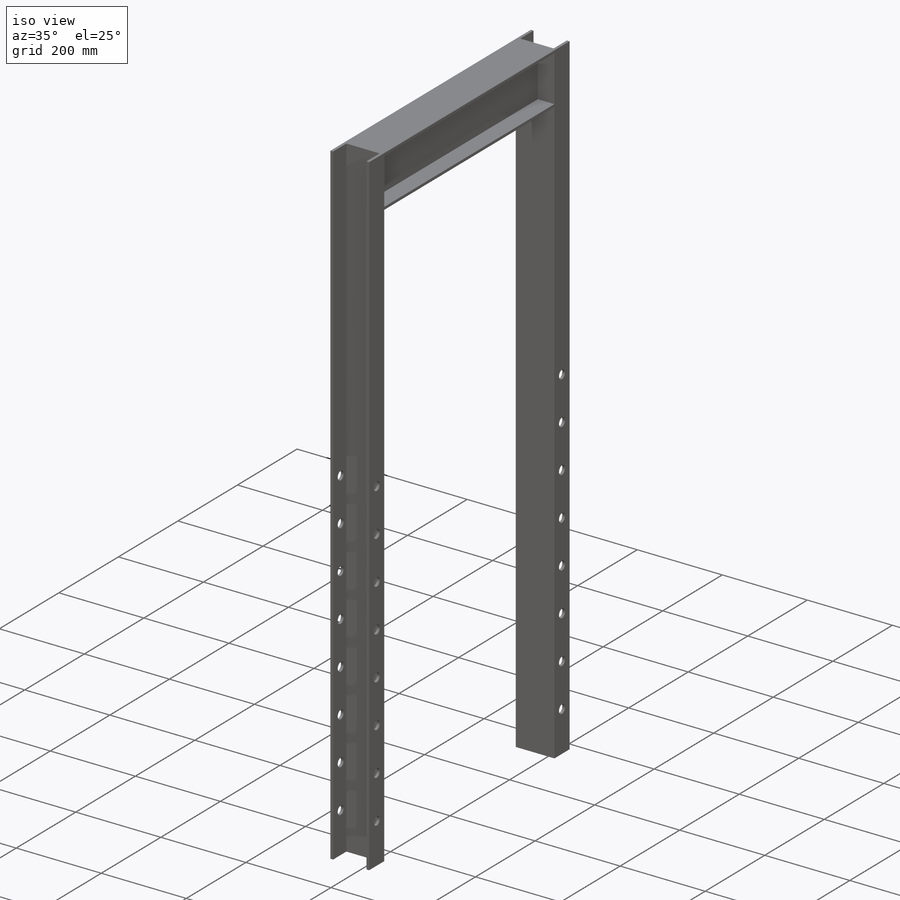
[diagram: iso view]
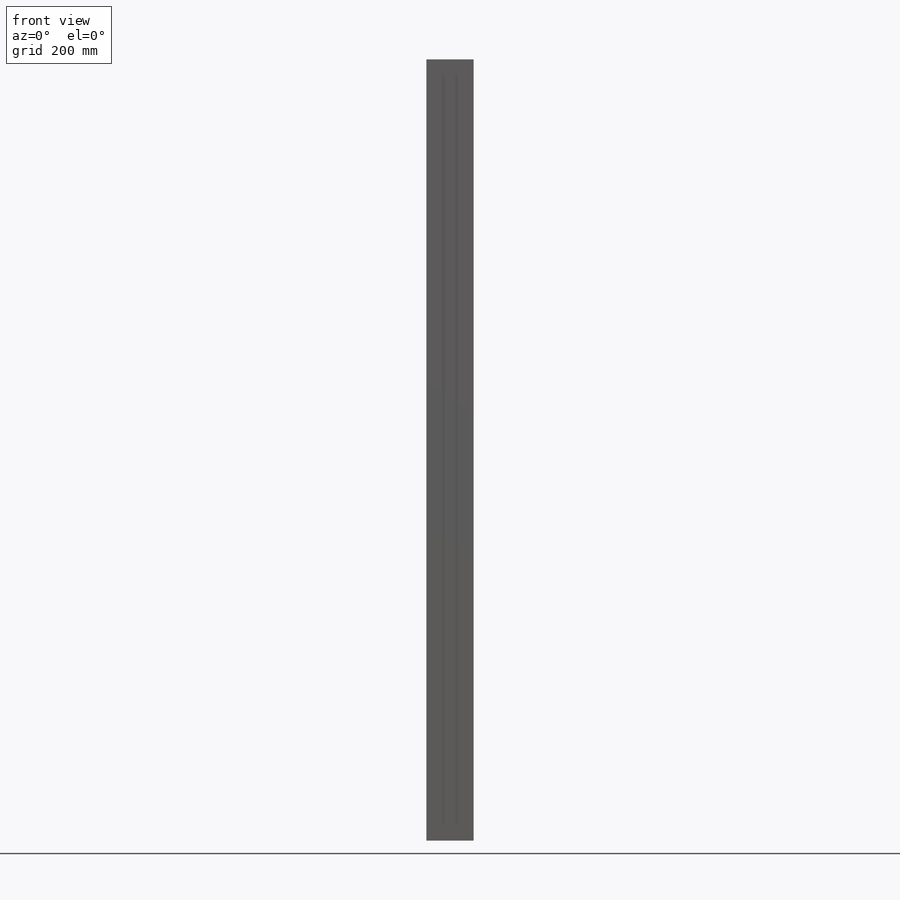
[diagram: front view]
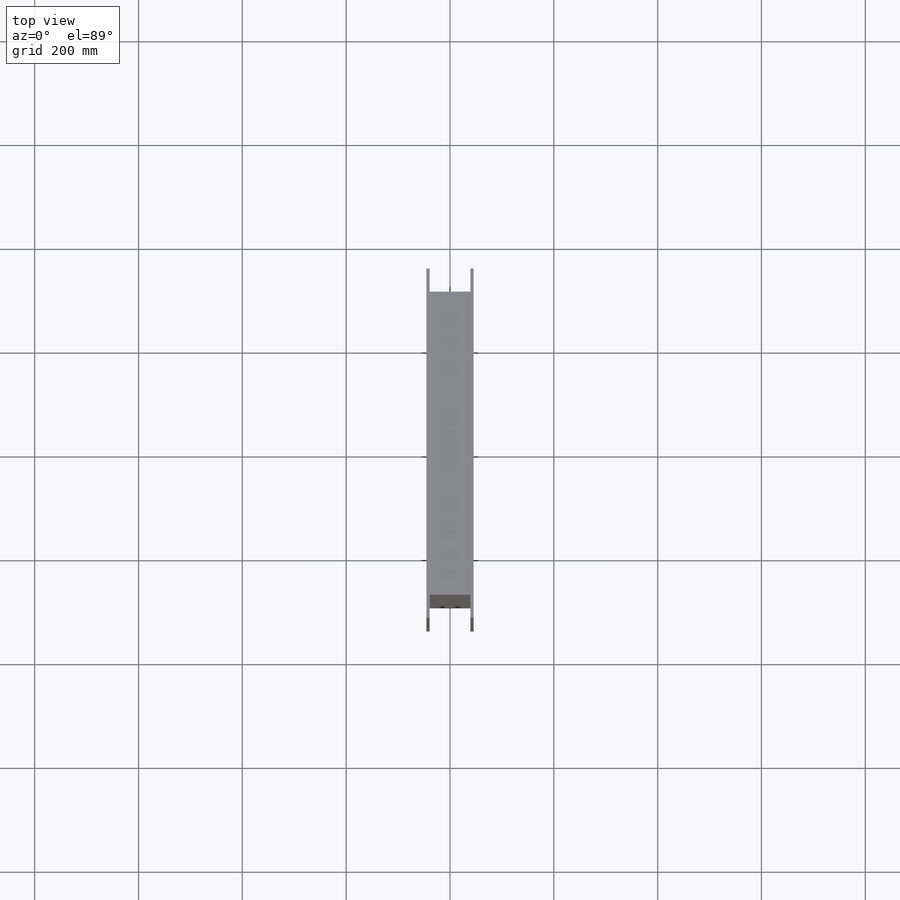
[diagram: top view]
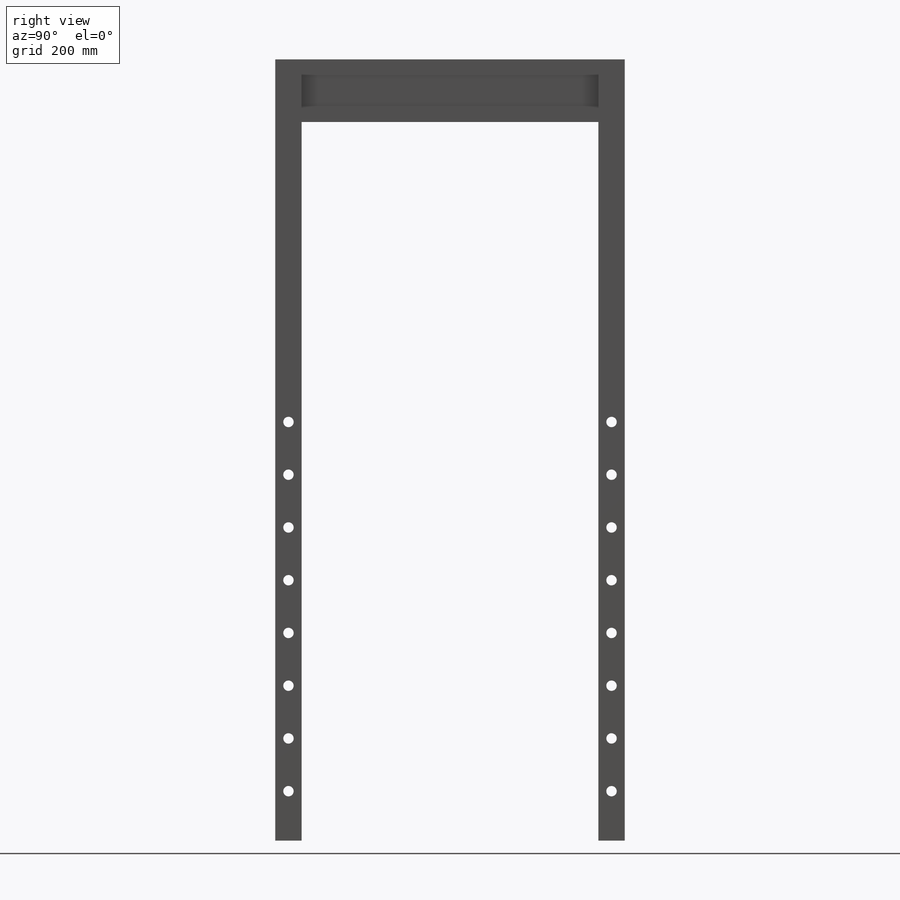
[diagram: right view]
SOLIDWORKS PART (.sldprt)
format: sldprt  version: not decoded by parser v0  size: 253,952 bytes
history: native  units: mm
features: sketch x3, extrude x2, mirror x2, material x1, cut_extrude x1, pattern_linear x1 (+16 scaffold rows collapsed)
feature tree (26):
  scaffold x16  (default folders/planes/origin — collapsed)
  material  "Material <not specified>"
  sketch  "Sketch1"  dims[c1.D1=50.165mm c1.D2=5.08mm c1.D3=49.53mm c2.D1=6.35mm c2.D2=120.65mm c2.D3=45.5295mm c2.D4=6.35mm]
  extrude  "Boss-Extrude1"  Depth=571.5mm
  mirror  "Mirror1"
  sketch  "Sketch3"  dims[D1=6.35mm D2=6.35mm D3=50.8mm]
  extrude  "Boss-Extrude2"  Depth=1504.95mm
  sketch  "Sketch4"  dims[D2=20.066mm D1=698.5mm]
  cut_extrude  "Cut-Extrude1"  [1 undecoded]
  pattern_linear  "LPattern1"  Count1=8 Count2=1 Spacing1=101.6mm Spacing2=2.54mm
  mirror  "Mirror2"
decode coverage: 6 of 9 modeling features carry decoded parameters
note: 1 parameter value undecoded
note: suppression state not decoded; provenance and decode notes live in map.json
